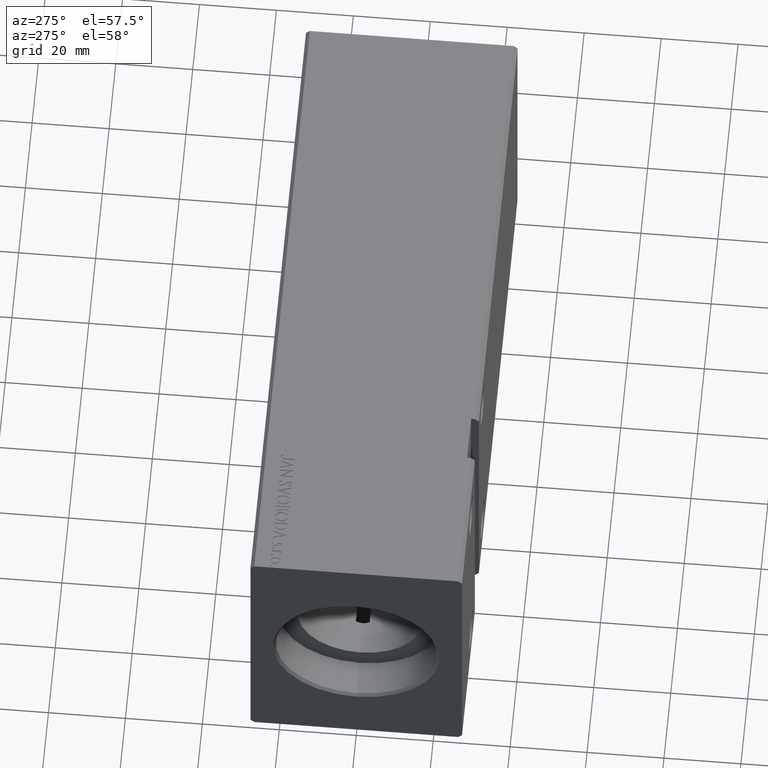
[diagram: clean part render]
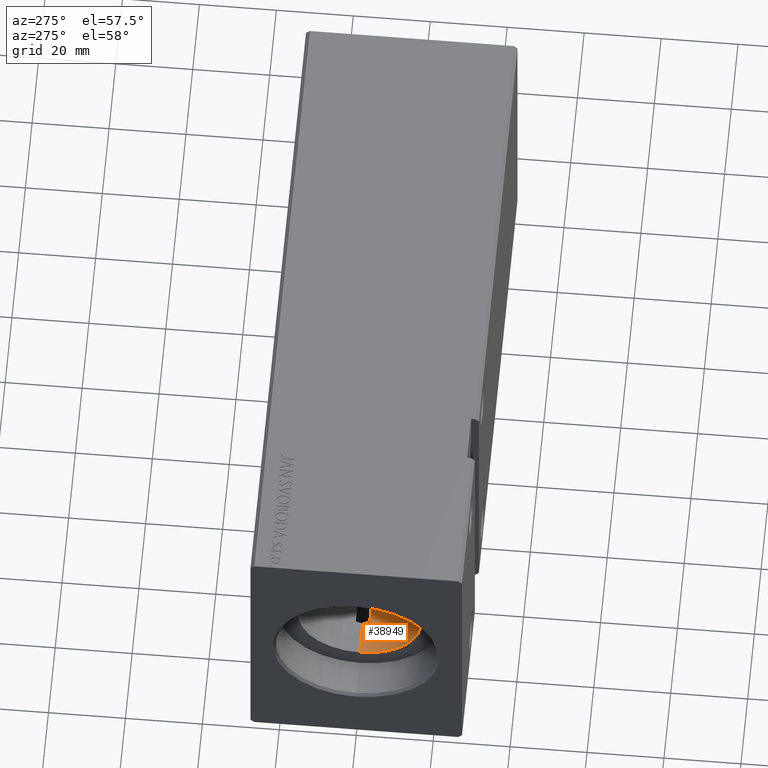
[diagram: same view with one face highlighted and labeled with its STEP entity id]
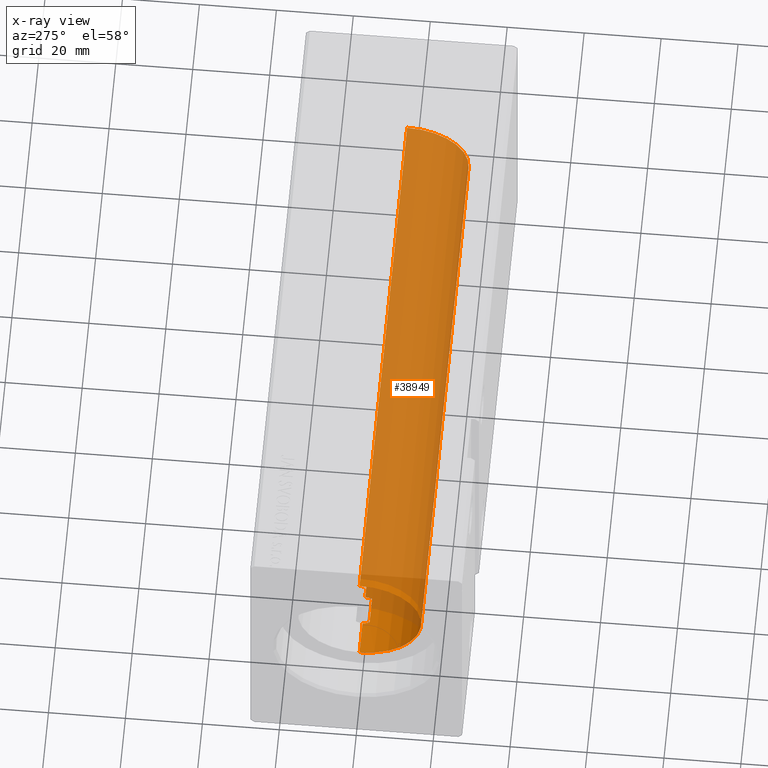
[diagram: x-ray of the same camera — body ghosted, the highlighted face saturated]
A machine part, auxiliary view. The second image highlights one B-rep face of the part: STEP entity #38949.
The next image is the same camera in x-ray: the body ghosted, the highlighted face saturated — about 93% of this face is hidden behind the body in this view.
In plain terms, the highlighted cylindrical surface (partial cylindrical patch) has radius 16 mm, axis along (-1, -0, -0).
Its self-contained STEP definition (entity closure, byte-faithful):
#126 = B_SPLINE_CURVE_WITH_KNOTS ( 'NONE', 3,
 ( #24104, #29310, #5587, #29906, #26902, #8189 ),
 .UNSPECIFIED., .F., .F.,
 ( 4, 2, 4 ),
 ( 0.000000000000000000, 0.0009228726212815562945, 0.001845745242563112589 ),
 .UNSPECIFIED. ) ;
#691 = ORIENTED_EDGE ( 'NONE', *, *, #32591, .T. ) ;
#795 = CARTESIAN_POINT ( 'NONE',  ( 151.1999999999999886, 0.000000000000000000, 0.000000000000000000 ) ) ;
#808 = CARTESIAN_POINT ( 'NONE',  ( 27.00000000000000000, -3.043259601029998868E-15, -16.00000000000000000 ) ) ;
#2019 = AXIS2_PLACEMENT_3D ( 'NONE', #30489, #9548, #21698 ) ;
#2405 = B_SPLINE_CURVE_WITH_KNOTS ( 'NONE', 3,
 ( #9232, #23603, #17812, #18005, #23982, #8844 ),
 .UNSPECIFIED., .F., .F.,
 ( 4, 2, 4 ),
 ( 0.000000000000000000, 0.0009228726212815540177, 0.001845745242563107602 ),
 .UNSPECIFIED. ) ;
#2507 = ORIENTED_EDGE ( 'NONE', *, *, #38668, .T. ) ;
#2633 = CARTESIAN_POINT ( 'NONE',  ( 26.57910603363461277, -1.786057109949259036, -15.89999999999998970 ) ) ;
#3122 = B_SPLINE_CURVE_WITH_KNOTS ( 'NONE', 3,
 ( #5997, #29935, #6193, #36516, #17768, #2633 ),
 .UNSPECIFIED., .F., .F.,
 ( 4, 2, 4 ),
 ( 0.001845745242563114324, 0.002767447188281244030, 0.003689149133999373303 ),
 .UNSPECIFIED. ) ;
#3222 = ORIENTED_EDGE ( 'NONE', *, *, #27401, .T. ) ;
#3393 = ORIENTED_EDGE ( 'NONE', *, *, #9370, .T. ) ;
#4594 = DIRECTION ( 'NONE',  ( -1.000000000000000000, -0.000000000000000000, -0.000000000000000000 ) ) ;
#5587 = CARTESIAN_POINT ( 'NONE',  ( 147.1780374505890450, -1.219576022118245673, -15.95627408098855149 ) ) ;
#5682 = ORIENTED_EDGE ( 'NONE', *, *, #38659, .T. ) ;
#5997 = CARTESIAN_POINT ( 'NONE',  ( 27.00000000000000000, -3.043259601029998868E-15, -16.00000000000000000 ) ) ;
#6193 = CARTESIAN_POINT ( 'NONE',  ( 26.96441505284474971, -0.6159808737045043836, -15.99099227927343314 ) ) ;
#6570 = DIRECTION ( 'NONE',  ( -1.000000000000000000, -0.000000000000000000, -0.000000000000000000 ) ) ;
#7108 = CIRCLE ( 'NONE', #2019, 16.00000000000000000 ) ;
#7168 = DIRECTION ( 'NONE',  ( -1.000000000000000000, 0.000000000000000000, 0.000000000000000000 ) ) ;
#7863 = VERTEX_POINT ( 'NONE', #16941 ) ;
#8189 = CARTESIAN_POINT ( 'NONE',  ( 146.9999999999999716, 1.959437589784439602E-15, -16.00000000000000000 ) ) ;
#8446 = VECTOR ( 'NONE', #24577, 1000.000000000000000 ) ;
#8537 = VECTOR ( 'NONE', #4594, 1000.000000000000000 ) ;
#8844 = CARTESIAN_POINT ( 'NONE',  ( 19.00000000000000000, -3.533112898183174258E-15, -16.00000000000000000 ) ) ;
#8969 = VERTEX_POINT ( 'NONE', #22032 ) ;
#9012 = VERTEX_POINT ( 'NONE', #22232 ) ;
#9034 = VERTEX_POINT ( 'NONE', #11076 ) ;
#9111 = EDGE_CURVE ( 'NONE', #8969, #33920, #17250, .T. ) ;
#9232 = CARTESIAN_POINT ( 'NONE',  ( 19.42089396636538368, -1.786057109949259036, -15.89999999999998970 ) ) ;
#9370 = EDGE_CURVE ( 'NONE', #8969, #7863, #126, .T. ) ;
#9548 = DIRECTION ( 'NONE',  ( -1.000000000000000000, 0.000000000000000000, 0.000000000000000000 ) ) ;
#9652 = VECTOR ( 'NONE', #6570, 1000.000000000000000 ) ;
#10388 = EDGE_CURVE ( 'NONE', #9012, #39265, #12424, .T. ) ;
#11076 = CARTESIAN_POINT ( 'NONE',  ( 10.00000000000000888, 1.959434878635765131E-15, -16.00000000000000000 ) ) ;
#11319 = AXIS2_PLACEMENT_3D ( 'NONE', #795, #7168, #28690 ) ;
#12424 = LINE ( 'NONE', #36766, #8446 ) ;
#13289 = EDGE_CURVE ( 'NONE', #20741, #37067, #22721, .T. ) ;
#13921 = DIRECTION ( 'NONE',  ( 0.000000000000000000, 0.000000000000000000, 1.000000000000000000 ) ) ;
#14826 = CARTESIAN_POINT ( 'NONE',  ( 151.1999999999999886, 0.000000000000000000, 16.00000000000000000 ) ) ;
#15411 = VECTOR ( 'NONE', #23424, 1000.000000000000000 ) ;
#15823 = ORIENTED_EDGE ( 'NONE', *, *, #9111, .F. ) ;
#16547 = CARTESIAN_POINT ( 'NONE',  ( 151.1999999999999886, 0.000000000000000000, 16.00000000000000000 ) ) ;
#16563 = EDGE_LOOP ( 'NONE', ( #3393, #34137, #3222, #33812, #691, #2507, #5682, #28889, #25590, #15823 ) ) ;
#16941 = CARTESIAN_POINT ( 'NONE',  ( 146.9999999999999716, 1.959437589784439602E-15, -16.00000000000000000 ) ) ;
#17250 = LINE ( 'NONE', #23023, #15411 ) ;
#17768 = CARTESIAN_POINT ( 'NONE',  ( 26.71754120084598938, -1.508644848340498168, -15.93116189573794195 ) ) ;
#17812 = CARTESIAN_POINT ( 'NONE',  ( 19.17803745058905562, -1.219576022118254111, -15.95627408098855504 ) ) ;
#18005 = CARTESIAN_POINT ( 'NONE',  ( 19.03643380211522995, -0.6204082509210444574, -15.99078302721733102 ) ) ;
#20490 = CARTESIAN_POINT ( 'NONE',  ( 151.1999999999999886, 0.000000000000000000, 0.000000000000000000 ) ) ;
#20741 = VERTEX_POINT ( 'NONE', #14826 ) ;
#21698 = DIRECTION ( 'NONE',  ( 0.000000000000000000, 0.000000000000000000, 1.000000000000000000 ) ) ;
#21887 = CARTESIAN_POINT ( 'NONE',  ( 10.00000000000000888, 0.000000000000000000, 16.00000000000000000 ) ) ;
#22032 = CARTESIAN_POINT ( 'NONE',  ( 147.4208939663653553, -1.786057109949259036, -15.89999999999998970 ) ) ;
#22094 = DIRECTION ( 'NONE',  ( -1.000000000000000000, -0.000000000000000000, -0.000000000000000000 ) ) ;
#22232 = CARTESIAN_POINT ( 'NONE',  ( 19.42089396636538368, -1.786057109949259036, -15.89999999999998970 ) ) ;
#22721 = LINE ( 'NONE', #16547, #8537 ) ;
#22889 = FACE_OUTER_BOUND ( 'NONE', #16563, .T. ) ;
#23023 = CARTESIAN_POINT ( 'NONE',  ( 151.1999999999999886, -1.786057109949259036, -15.89999999999998970 ) ) ;
#23424 = DIRECTION ( 'NONE',  ( 1.000000000000000000, 0.000000000000000000, 0.000000000000000000 ) ) ;
#23481 = CYLINDRICAL_SURFACE ( 'NONE', #35784, 16.00000000000000000 ) ;
#23603 = CARTESIAN_POINT ( 'NONE',  ( 19.28229384797884194, -1.508314300261687002, -15.93119902641381991 ) ) ;
#23982 = CARTESIAN_POINT ( 'NONE',  ( 19.00000000000000355, -0.3077040434552402726, -16.00000000000000355 ) ) ;
#24104 = CARTESIAN_POINT ( 'NONE',  ( 147.4208939663653553, -1.786057109949259036, -15.89999999999998970 ) ) ;
#24577 = DIRECTION ( 'NONE',  ( 1.000000000000000000, 0.000000000000000000, 0.000000000000000000 ) ) ;
#25485 = EDGE_CURVE ( 'NONE', #33920, #20741, #38691, .T. ) ;
#25590 = ORIENTED_EDGE ( 'NONE', *, *, #25485, .F. ) ;
#26902 = CARTESIAN_POINT ( 'NONE',  ( 146.9999999999999716, -0.3077040434552365533, -16.00000000000000000 ) ) ;
#27401 = EDGE_CURVE ( 'NONE', #30740, #39265, #3122, .T. ) ;
#28079 = LINE ( 'NONE', #34881, #30037 ) ;
#28690 = DIRECTION ( 'NONE',  ( 0.000000000000000000, 0.000000000000000000, 1.000000000000000000 ) ) ;
#28882 = DIRECTION ( 'NONE',  ( -1.000000000000000000, -0.000000000000000000, -0.000000000000000000 ) ) ;
#28889 = ORIENTED_EDGE ( 'NONE', *, *, #13289, .F. ) ;
#29310 = CARTESIAN_POINT ( 'NONE',  ( 147.2822938479787922, -1.508314300261685892, -15.93119902641380925 ) ) ;
#29488 = CARTESIAN_POINT ( 'NONE',  ( 151.1999999999999886, -1.786057109949259036, -15.89999999999998970 ) ) ;
#29906 = CARTESIAN_POINT ( 'NONE',  ( 147.0364338021151696, -0.6204082509210333551, -15.99078302721733102 ) ) ;
#29935 = CARTESIAN_POINT ( 'NONE',  ( 27.00000000000000000, -0.3073137169939997304, -16.00000000000000000 ) ) ;
#30037 = VECTOR ( 'NONE', #22094, 1000.000000000000000 ) ;
#30489 = CARTESIAN_POINT ( 'NONE',  ( 10.00000000000000888, 0.000000000000000000, 0.000000000000000000 ) ) ;
#30740 = VERTEX_POINT ( 'NONE', #808 ) ;
#32591 = EDGE_CURVE ( 'NONE', #9012, #37321, #2405, .T. ) ;
#33812 = ORIENTED_EDGE ( 'NONE', *, *, #10388, .F. ) ;
#33871 = LINE ( 'NONE', #36491, #9652 ) ;
#33920 = VERTEX_POINT ( 'NONE', #29488 ) ;
#34137 = ORIENTED_EDGE ( 'NONE', *, *, #38782, .T. ) ;
#34573 = CARTESIAN_POINT ( 'NONE',  ( 19.00000000000000000, -3.533112898183174258E-15, -16.00000000000000000 ) ) ;
#34881 = CARTESIAN_POINT ( 'NONE',  ( 151.1999999999999886, 1.959434878635765131E-15, -16.00000000000000000 ) ) ;
#35784 = AXIS2_PLACEMENT_3D ( 'NONE', #20490, #28882, #13921 ) ;
#36491 = CARTESIAN_POINT ( 'NONE',  ( 151.1999999999999886, 1.959434878635765131E-15, -16.00000000000000000 ) ) ;
#36516 = CARTESIAN_POINT ( 'NONE',  ( 26.82224888748791969, -1.219193417833760451, -15.95634149554536130 ) ) ;
#36677 = CARTESIAN_POINT ( 'NONE',  ( 26.57910603363461277, -1.786057109949259036, -15.89999999999998970 ) ) ;
#36766 = CARTESIAN_POINT ( 'NONE',  ( 151.1999999999999886, -1.786057109949259036, -15.89999999999998970 ) ) ;
#37067 = VERTEX_POINT ( 'NONE', #21887 ) ;
#37321 = VERTEX_POINT ( 'NONE', #34573 ) ;
#38659 = EDGE_CURVE ( 'NONE', #9034, #37067, #7108, .T. ) ;
#38668 = EDGE_CURVE ( 'NONE', #37321, #9034, #33871, .T. ) ;
#38691 = CIRCLE ( 'NONE', #11319, 16.00000000000000000 ) ;
#38782 = EDGE_CURVE ( 'NONE', #7863, #30740, #28079, .T. ) ;
#38949 = ADVANCED_FACE ( 'NONE', ( #22889 ), #23481, .F. ) ;
#39265 = VERTEX_POINT ( 'NONE', #36677 ) ;